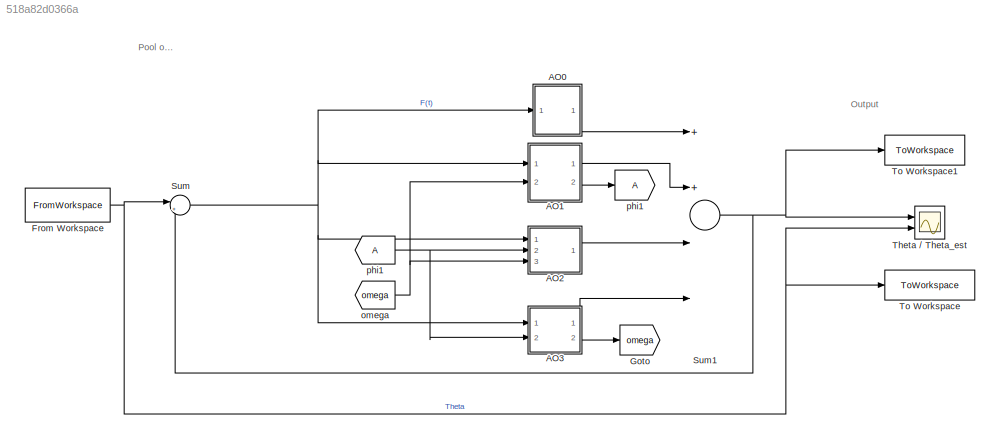
MODEL slx_518a82d0366a
KIND model
CONFIG AbsTol = auto
CONFIG EnableMultiTasking = off
CONFIG FixedStep = tsamp
CONFIG MaxStep = 0.01
CONFIG MinStep = auto
CONFIG RelTol = 1e-3
CONFIG SampleTimeConstraint = Unconstrained
CONFIG Solver = FixedStepAuto
CONFIG SolverName = FixedStepAuto
CONFIG StartTime = 0.0
CONFIG StopTime = t_sim
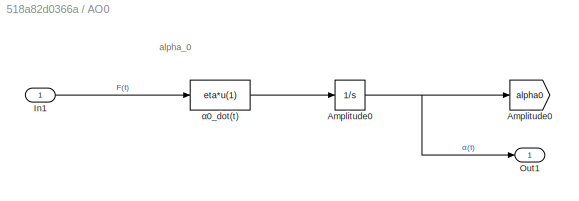
BLOCK [SubSystem] AO0
  Ports = [1, 1]
  RequestExecContextInheritance = off
BLOCK [Integrator] AO0/Amplitude0
  ContinuousStateAttributes = 'Amplitude'
  InitialCondition = alpha_0_init
  Ports = [1, 1]
BLOCK [Goto] AO0/Amplitude0 
  GotoTag = alpha0
  TagVisibility = global
BLOCK [Inport] AO0/In1
  IconDisplay = Port number
BLOCK [Outport] AO0/Out1
  IconDisplay = Port number
BLOCK [Fcn] AO0/α0_dot(t)
  Expr = eta*u(1)
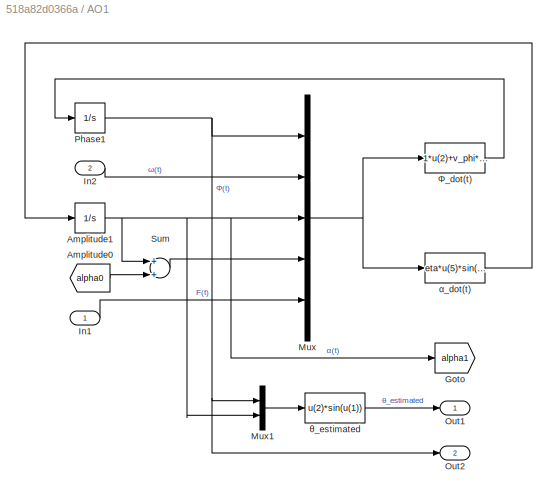
BLOCK [SubSystem] AO1
  Ports = [2, 2]
  RequestExecContextInheritance = off
BLOCK [From] AO1/Amplitude0
  GotoTag = alpha0
  TagVisibility = global
BLOCK [Integrator] AO1/Amplitude1
  ContinuousStateAttributes = 'Amplitude'
  InitialCondition = alpha_init
  Ports = [1, 1]
BLOCK [Goto] AO1/Goto
  GotoTag = alpha1
  TagVisibility = global
BLOCK [Inport] AO1/In1
  IconDisplay = Port number
BLOCK [Inport] AO1/In2
  IconDisplay = Port number
  Port = 2
BLOCK [Mux] AO1/Mux
  DisplayOption = bar
  Inputs = 5
  Ports = [5, 1]
BLOCK [Mux] AO1/Mux1
  DisplayOption = bar
  Inputs = 2
  Ports = [2, 1]
BLOCK [Outport] AO1/Out1
  IconDisplay = Port number
BLOCK [Outport] AO1/Out2
  IconDisplay = Port number
  Port = 2
BLOCK [Integrator] AO1/Phase1
  ContinuousStateAttributes = 'Phase'
  InitialCondition = phi_init
  Ports = [1, 1]
BLOCK [Sum] AO1/Sum
  InputSameDT = off
  Inputs = 2
  OutDataTypeStr = Inherit: Inherit via internal rule
  Ports = [2, 1]
  SaturateOnIntegerOverflow = off
BLOCK [Fcn] AO1/Φ_dot(t)
  Expr = 1*u(2)+v_phi*u(5)*cos(u(1))/u(4)
BLOCK [Fcn] AO1/α_dot(t)
  Expr = eta*u(5)*sin(u(1))
BLOCK [Fcn] AO1/θ_estimated
  Expr = u(2)*sin(u(1))
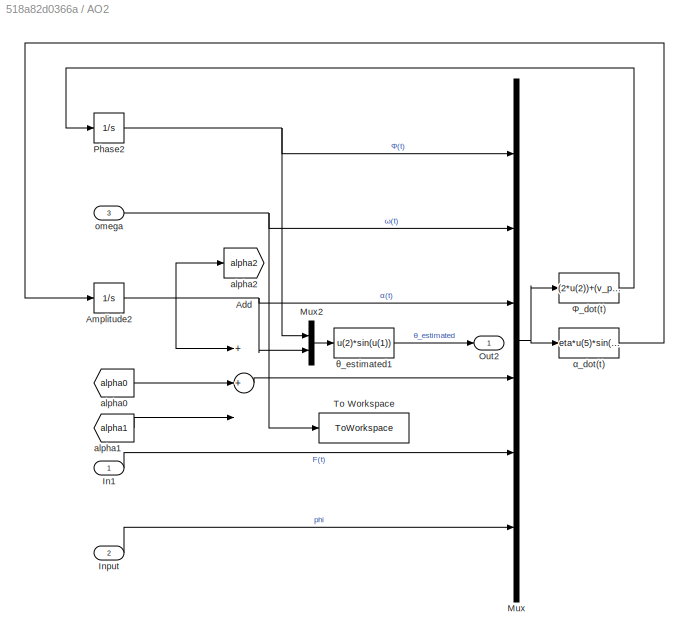
BLOCK [SubSystem] AO2
  Ports = [3, 1]
  RequestExecContextInheritance = off
BLOCK [Sum] AO2/Add
  InputSameDT = off
  Inputs = 3
  OutDataTypeStr = Inherit: Inherit via internal rule
  Ports = [3, 1]
  SaturateOnIntegerOverflow = off
BLOCK [Integrator] AO2/Amplitude2
  ContinuousStateAttributes = 'Amplitude'
  InitialCondition = alpha_init
  Ports = [1, 1]
BLOCK [Inport] AO2/In1
  IconDisplay = Port number
BLOCK [Inport] AO2/Input
  IconDisplay = Port number
  Port = 2
BLOCK [Mux] AO2/Mux
  DisplayOption = bar
  Inputs = 6
  Ports = [6, 1]
BLOCK [Mux] AO2/Mux2
  DisplayOption = bar
  Inputs = 2
  Ports = [2, 1]
BLOCK [Outport] AO2/Out2
  IconDisplay = Port number
BLOCK [Integrator] AO2/Phase2
  ContinuousStateAttributes = 'Phase'
  InitialCondition = phi_init
  Ports = [1, 1]
BLOCK [ToWorkspace] AO2/To Workspace
  FixptAsFi = on
  MaxDataPoints = inf
  Ports = [1]
  SampleTime = -1
  SaveFormat = Structure With Time
  VariableName = omega1
BLOCK [From] AO2/alpha0 
  GotoTag = alpha0
  TagVisibility = global
BLOCK [From] AO2/alpha1
  GotoTag = alpha1
  TagVisibility = global
BLOCK [Goto] AO2/alpha2 
  GotoTag = alpha2
  TagVisibility = global
BLOCK [Inport] AO2/omega 
  IconDisplay = Port number
  Port = 3
BLOCK [Fcn] AO2/Φ_dot(t)
  Expr = (2*u(2))+(v_phi*u(5)*cos(u(1))/u(4))
BLOCK [Fcn] AO2/α_dot(t)
  Expr = eta*u(5)*sin(u(1))
BLOCK [Fcn] AO2/θ_estimated1
  Expr = u(2)*sin(u(1))
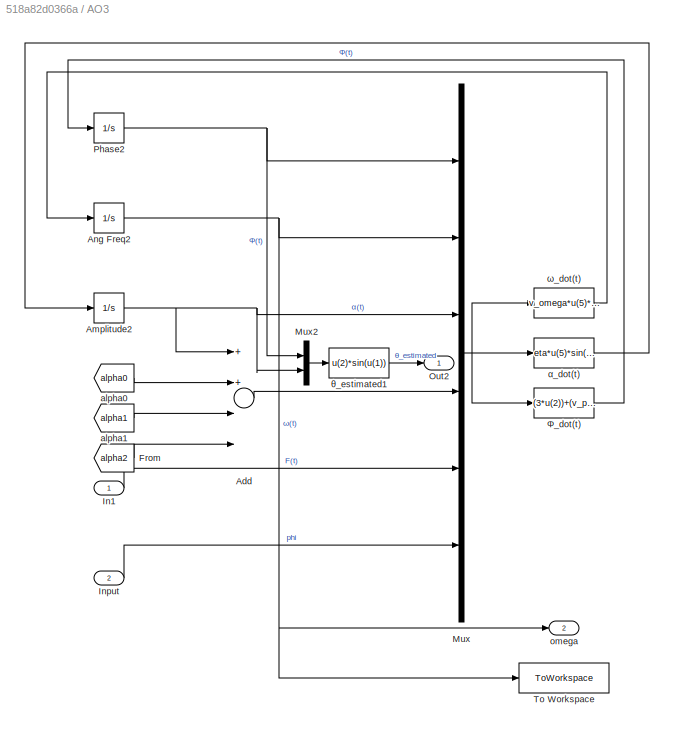
BLOCK [SubSystem] AO3
  Ports = [2, 2]
  RequestExecContextInheritance = off
BLOCK [Sum] AO3/Add
  InputSameDT = off
  Inputs = 4
  OutDataTypeStr = Inherit: Inherit via internal rule
  Ports = [4, 1]
  SaturateOnIntegerOverflow = off
BLOCK [Integrator] AO3/Amplitude2
  ContinuousStateAttributes = 'Amplitude'
  InitialCondition = alpha_init
  Ports = [1, 1]
BLOCK [Integrator] AO3/Ang Freq2
  ContinuousStateAttributes = 'AngularFrequency'
  InitialCondition = omega_init
  Ports = [1, 1]
BLOCK [From] AO3/From
  GotoTag = alpha2
  TagVisibility = global
BLOCK [Inport] AO3/In1
  IconDisplay = Port number
BLOCK [Inport] AO3/Input
  IconDisplay = Port number
  Port = 2
BLOCK [Mux] AO3/Mux
  DisplayOption = bar
  Inputs = 6
  Ports = [6, 1]
BLOCK [Mux] AO3/Mux2
  DisplayOption = bar
  Inputs = 2
  Ports = [2, 1]
BLOCK [Outport] AO3/Out2
  IconDisplay = Port number
BLOCK [Integrator] AO3/Phase2
  ContinuousStateAttributes = 'Phase'
  InitialCondition = phi_init
  Ports = [1, 1]
BLOCK [ToWorkspace] AO3/To Workspace
  FixptAsFi = on
  MaxDataPoints = inf
  Ports = [1]
  SampleTime = -1
  SaveFormat = Structure With Time
  VariableName = omega
BLOCK [From] AO3/alpha0 
  GotoTag = alpha0
  TagVisibility = global
BLOCK [From] AO3/alpha1
  GotoTag = alpha1
  TagVisibility = global
BLOCK [Outport] AO3/omega 
  IconDisplay = Port number
  Port = 2
BLOCK [Fcn] AO3/Φ_dot(t)
  Expr = (3*u(2))+(v_phi*u(5)*cos(u(1))/u(4))
BLOCK [Fcn] AO3/α_dot(t)
  Expr = eta*u(5)*sin(u(1))
BLOCK [Fcn] AO3/θ_estimated1
  Expr = u(2)*sin(u(1))
BLOCK [Fcn] AO3/ω_dot(t)
  Expr = v_omega*u(5)*cos(u(6))/u(4)
BLOCK [FromWorkspace] From Workspace
  Interpolate = off
  OutputAfterFinalValue = Holding final value
  SampleTime = tsamp
  VariableName = theta_fourier_sim
  ZeroCross = on
BLOCK [Goto] Goto
  GotoTag = omega
BLOCK [Sum] Sum
  IconShape = round
  InputSameDT = off
  Inputs = |+-
  OutDataTypeStr = Inherit: Inherit via internal rule
  Ports = [2, 1]
  SaturateOnIntegerOverflow = off
BLOCK [Sum] Sum1
  InputSameDT = off
  Inputs = 4
  OutDataTypeStr = Inherit: Inherit via internal rule
  Ports = [4, 1]
  SaturateOnIntegerOverflow = off
BLOCK [Scope] Theta // Theta_est 
  Floating = off
  NumInputPorts = 2
  Ports = [2]
  ScopeSpecificationString = Simulink.scopes.TimeScopeBlockCfg('CurrentConfiguration', extmgr.ConfigurationSet(extmgr.Configuration('Core','General UI',true),extmgr.Configuration('Core','Source UI',true),extmgr.Configuration('Sources','WiredSimulink',true,'DataLoggingVariableName','ScopeData1'),extmgr.Configuration('Visuals','Time Domain',true,'SerializedDisplays',{struct('MinYLimReal','-1.35798','MaxYLimReal','0.95923','YLab...<+1468ch>
BLOCK [ToWorkspace] To Workspace
  FixptAsFi = on
  MaxDataPoints = inf
  Ports = [1]
  SampleTime = -1
  SaveFormat = Timeseries
  VariableName = theta
BLOCK [ToWorkspace] To Workspace1
  FixptAsFi = on
  MaxDataPoints = inf
  Ports = [1]
  SampleTime = -1
  SaveFormat = Timeseries
  VariableName = theta_estimated
BLOCK [From] omega
  GotoTag = omega
BLOCK [Goto] phi1
BLOCK [From] phi1 
ANNOTATION (root): Pool of Adaptive Oscillators
ANNOTATION (root): Output
ANNOTATION AO0: alpha_0
NET AO0/Amplitude0:1 -> AO0/Amplitude0 :1, AO0/Out1:1
LINE AO0/In1:1 -> AO0/α0_dot(t):1
LINE AO0/α0_dot(t):1 -> AO0/Amplitude0:1
LINE AO0:1 -> Sum1:1
LINE AO1/Amplitude0:1 -> AO1/Sum:2
NET AO1/Amplitude1:1 -> AO1/Goto:1, AO1/Mux1:2, AO1/Mux:3, AO1/Sum:1
LINE AO1/In1:1 -> AO1/Mux:5
LINE AO1/In2:1 -> AO1/Mux:2
LINE AO1/Mux1:1 -> AO1/θ_estimated:1
NET AO1/Mux:1 -> AO1/Φ_dot(t):1, AO1/α_dot(t):1
NET AO1/Phase1:1 -> AO1/Mux1:1, AO1/Mux:1, AO1/Out2:1
LINE AO1/Sum:1 -> AO1/Mux:4
LINE AO1/Φ_dot(t):1 -> AO1/Phase1:1
LINE AO1/α_dot(t):1 -> AO1/Amplitude1:1
LINE AO1/θ_estimated:1 -> AO1/Out1:1
LINE AO1:1 -> Sum1:2
LINE AO1:2 -> phi1:1
LINE AO2/Add:1 -> AO2/Mux:4
NET AO2/Amplitude2:1 -> AO2/Add:1, AO2/Mux2:2, AO2/Mux:3, AO2/alpha2 :1
LINE AO2/In1:1 -> AO2/Mux:5
LINE AO2/Input:1 -> AO2/Mux:6
LINE AO2/Mux2:1 -> AO2/θ_estimated1:1
NET AO2/Mux:1 -> AO2/Φ_dot(t):1, AO2/α_dot(t):1
NET AO2/Phase2:1 -> AO2/Mux2:1, AO2/Mux:1
LINE AO2/alpha0 :1 -> AO2/Add:2
LINE AO2/alpha1:1 -> AO2/Add:3
NET AO2/omega :1 -> AO2/Mux:2, AO2/To Workspace:1
LINE AO2/Φ_dot(t):1 -> AO2/Phase2:1
LINE AO2/α_dot(t):1 -> AO2/Amplitude2:1
LINE AO2/θ_estimated1:1 -> AO2/Out2:1
LINE AO2:1 -> Sum1:3
LINE AO3/Add:1 -> AO3/Mux:4
NET AO3/Amplitude2:1 -> AO3/Add:1, AO3/Mux2:2, AO3/Mux:3
NET AO3/Ang Freq2:1 -> AO3/Mux:2, AO3/To Workspace:1, AO3/omega :1
LINE AO3/From:1 -> AO3/Add:4
LINE AO3/In1:1 -> AO3/Mux:5
LINE AO3/Input:1 -> AO3/Mux:6
LINE AO3/Mux2:1 -> AO3/θ_estimated1:1
NET AO3/Mux:1 -> AO3/Φ_dot(t):1, AO3/α_dot(t):1, AO3/ω_dot(t):1
NET AO3/Phase2:1 -> AO3/Mux2:1, AO3/Mux:1
LINE AO3/alpha0 :1 -> AO3/Add:2
LINE AO3/alpha1:1 -> AO3/Add:3
LINE AO3/Φ_dot(t):1 -> AO3/Phase2:1
LINE AO3/α_dot(t):1 -> AO3/Amplitude2:1
LINE AO3/θ_estimated1:1 -> AO3/Out2:1
LINE AO3/ω_dot(t):1 -> AO3/Ang Freq2:1
LINE AO3:1 -> Sum1:4
LINE AO3:2 -> Goto:1
NET From Workspace:1 -> Sum:1, Theta // Theta_est :2, To Workspace:1
NET Sum1:1 -> Sum:2, Theta // Theta_est :1, To Workspace1:1
NET Sum:1 -> AO0:1, AO1:1, AO2:1, AO3:1
NET omega:1 -> AO1:2, AO2:3
NET phi1 :1 -> AO2:2, AO3:2
note: NET lines group one-source signal fan-out (src -> all destinations, sorted); 1:1 wires keep LINE
